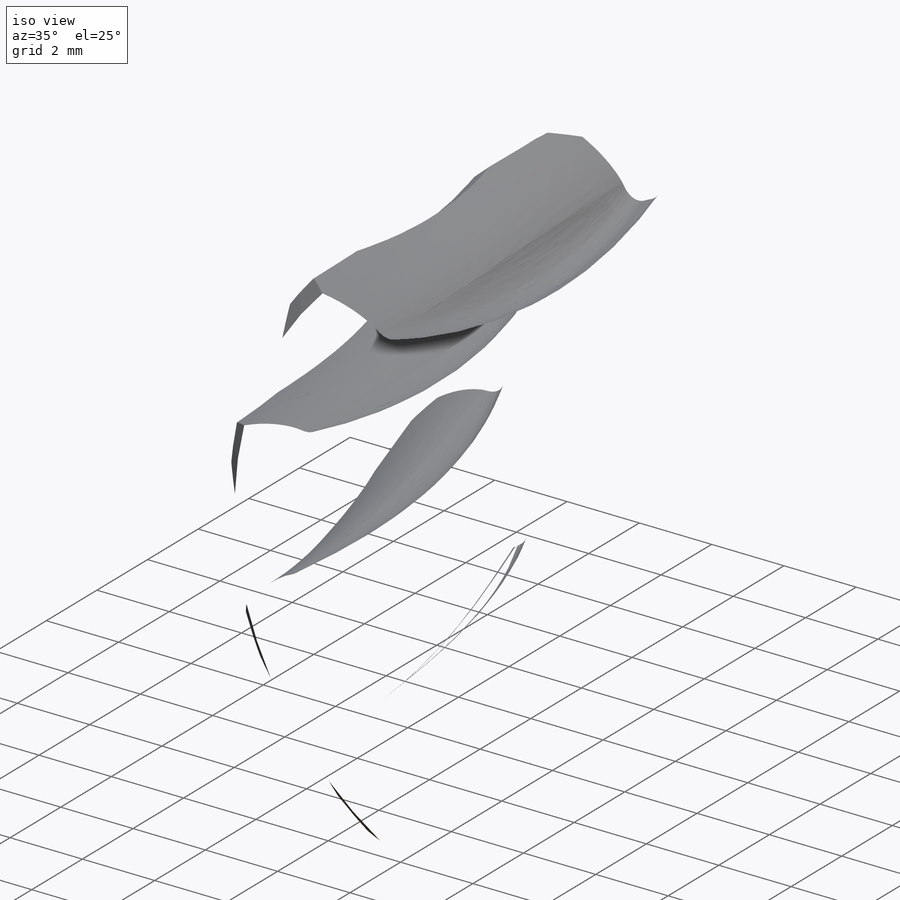
[diagram: iso view]
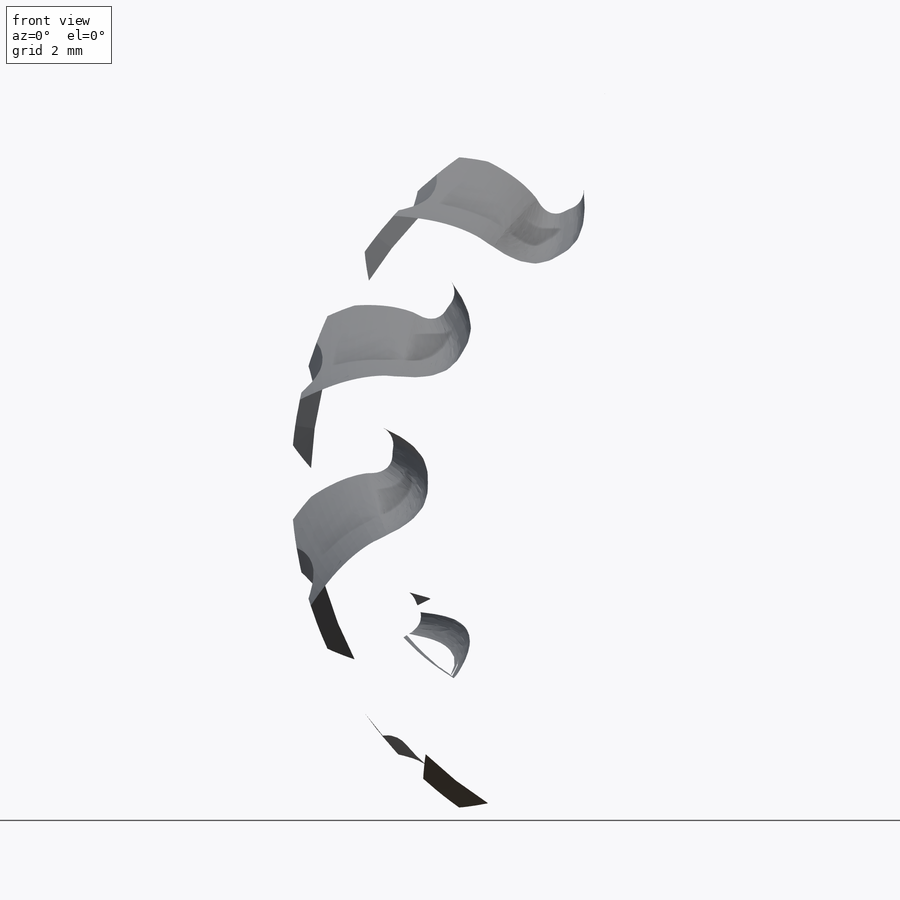
[diagram: front view]
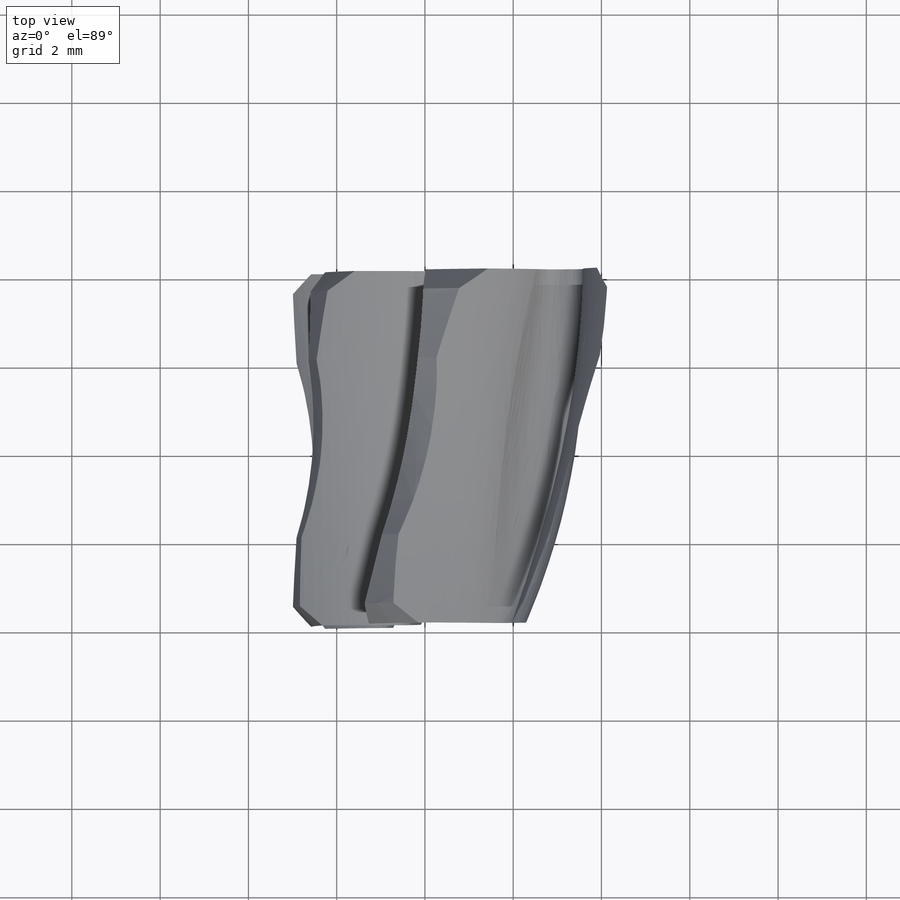
[diagram: top view]
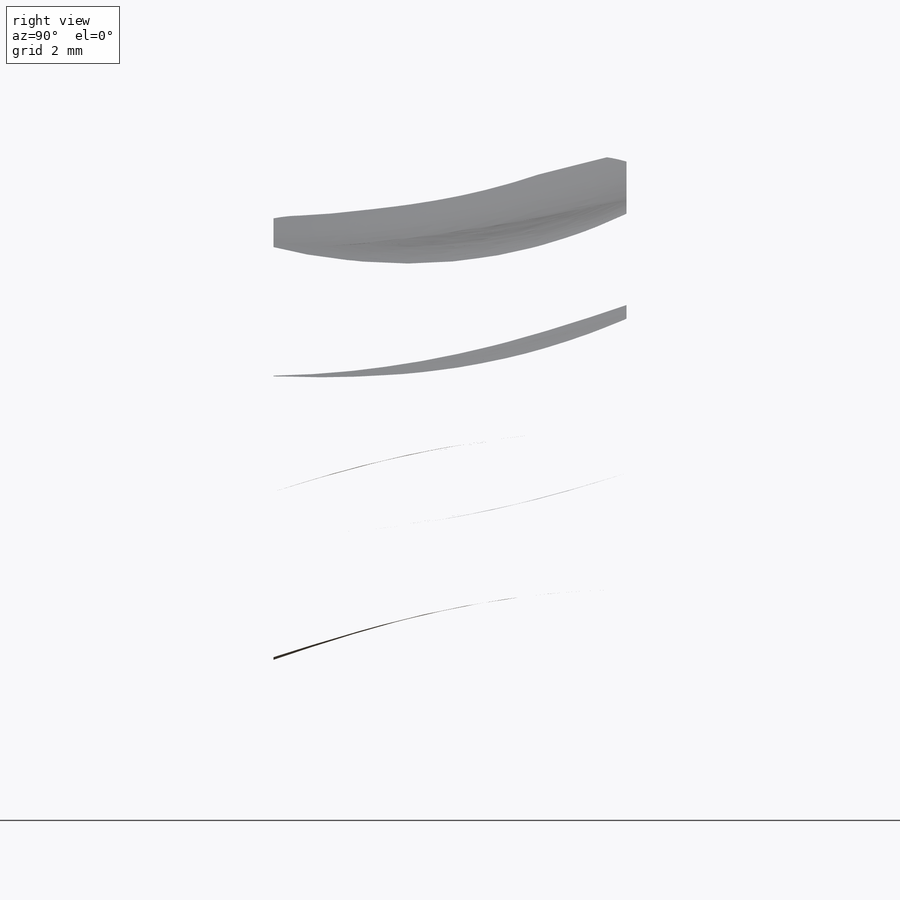
[diagram: right view]
SOLIDWORKS PART (.sldprt)
format: sldprt  version: not decoded by parser v0  size: 5,764,096 bytes
history: native  units: mm
features: cut_revolve x15, sketch x9, revolve x3, plane x2, pattern_circular x2, thread x2, material x1, extrude x1, hole x1, chamfer x1 (+13 scaffold rows collapsed)
feature tree (50):
  scaffold x13  (default folders/planes/origin — collapsed)
  material  "Commercial Bronze, UNS C22000 (90-10 Bronze)"
  sketch  "Sketch1"
  sketch  "SketchRevolve4 to 1 with 16mm CC RV C"  dims[ThroatDiameter=14.5mm Side1=4.0mm ChamferX=0.4448mm ChamferY=0.4448mm OutsideDiameter=~18.06264mm ThroatDistance=~6.96868mm FaceWidth=8.0mm]
  revolve  "4 to 1 with 16mm CC RV C"  Angle=360deg
  plane  "Plane1"
  sketch  "HubSketchSide1"  dims[HubFillet1=1.0mm HubRadius1=12.0mm HubChamferX1=0.5mm HubChamferY1=0.5mm HubFace1=12.3mm HubComponentFace1=4.0mm]
  revolve  "HubRevolve1"  Angle=360deg
  sketch  "HubSketchSide2"  dims[HubFillet2=1.0mm HubRadius2=12.0mm HubChamferX2=0.5mm HubChamferY2=0.5mm HubFace2=12.3mm HubComponentFace2=4.0mm]
  revolve  "HubRevolve2"  Angle=360deg
  sketch  "BoreRevolveSketch"  dims[BoreSide1=13.25mm TaperSide1=2.875mm Chamfer1X=0.5mm Chamfer1Y=0.5mm BoreSide2=12.3mm TaperSide2=2.875mm]
  cut_revolve  "BoreRevolveCut"  Angle=360deg
  sketch  "AuxiliarySketch4 to 1 with 16mm CC RV C"
  cut_revolve  "Cutter<14>@InterimAssy1"  [1 undecoded]
  cut_revolve  "Cutter<13>@InterimAssy1"  [1 undecoded]
  cut_revolve  "Cutter<12>@InterimAssy1"  [1 undecoded]
  cut_revolve  "Cutter<11>@InterimAssy1"  [1 undecoded]
  cut_revolve  "Cutter<10>@InterimAssy1"  [1 undecoded]
  cut_revolve  "Cutter<9>@InterimAssy1"  [1 undecoded]
  cut_revolve  "Cutter<8>@InterimAssy1"  [1 undecoded]
  cut_revolve  "Cutter<7>@InterimAssy1"  [1 undecoded]
  cut_revolve  "Cutter<6>@InterimAssy1"  [1 undecoded]
  cut_revolve  "Cutter<5>@InterimAssy1"  [1 undecoded]
  cut_revolve  "Cutter<4>@InterimAssy1"  [1 undecoded]
  cut_revolve  "Cutter<3>@InterimAssy1"  [1 undecoded]
  cut_revolve  "Cutter<2>@InterimAssy1"  [1 undecoded]
  cut_revolve  "Cutter<1>@InterimAssy1"  [1 undecoded]
  pattern_circular  "HobSide2"  Count=2 Angle=180deg
  pattern_circular  "CirPattern2"  Count=12 Angle=360deg
  sketch  "Sketch7"  dims[D1=4.22mm]
  extrude  "Boss-Extrude1"  [1 undecoded]
  hole  "#8-32 Tapped Hole1"  Diameter=3.4544mm Depth=9.589385mm
  sketch  "Sketch9"  dims[D1=4.3mm D2=4.3mm D3=16.0mm]
  sketch  "Sketch8"  dims[hole-wizard template sketch: 60 standard entries collapsed; hole parameters kept: c18.Thru Tap Drill Depth=~9.589385mm]
  thread  "Hole Thread1"  Diameter=4.1656mm  [1 undecoded]
  thread  "Hole Thread2"  Diameter=4.1656mm  [1 undecoded]
  chamfer  "Chamfer1"  Distance=0.5mm Angle=45deg
  plane  "Plane2"
decode coverage: 17 of 34 modeling features carry decoded parameters
note: ~ marks probable driven/reference dimensions
note: 17 parameter values undecoded
summary: no parameter record found for 15 features
note: suppression state not decoded; provenance and decode notes live in map.json
